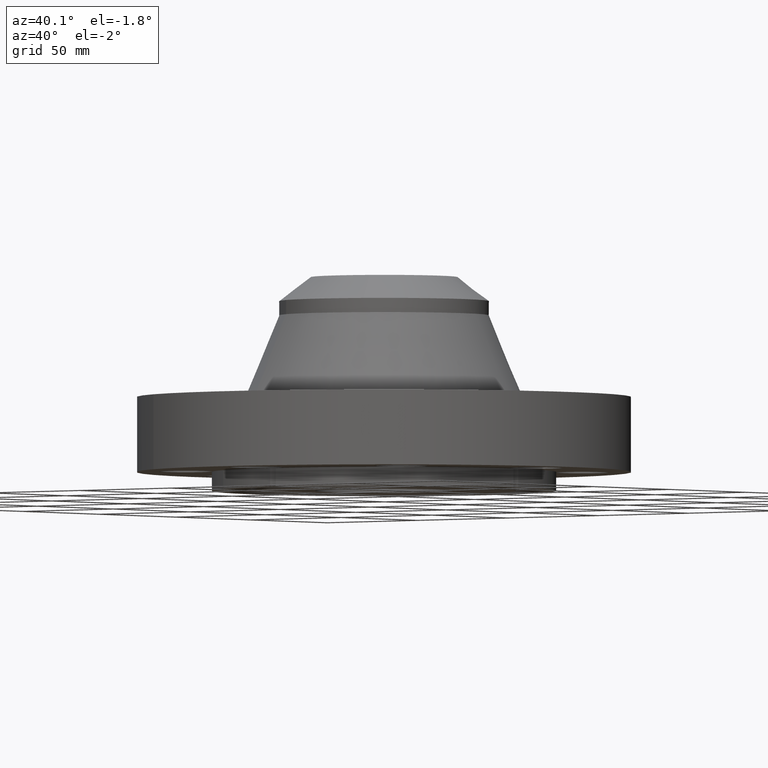
[diagram: clean part render]
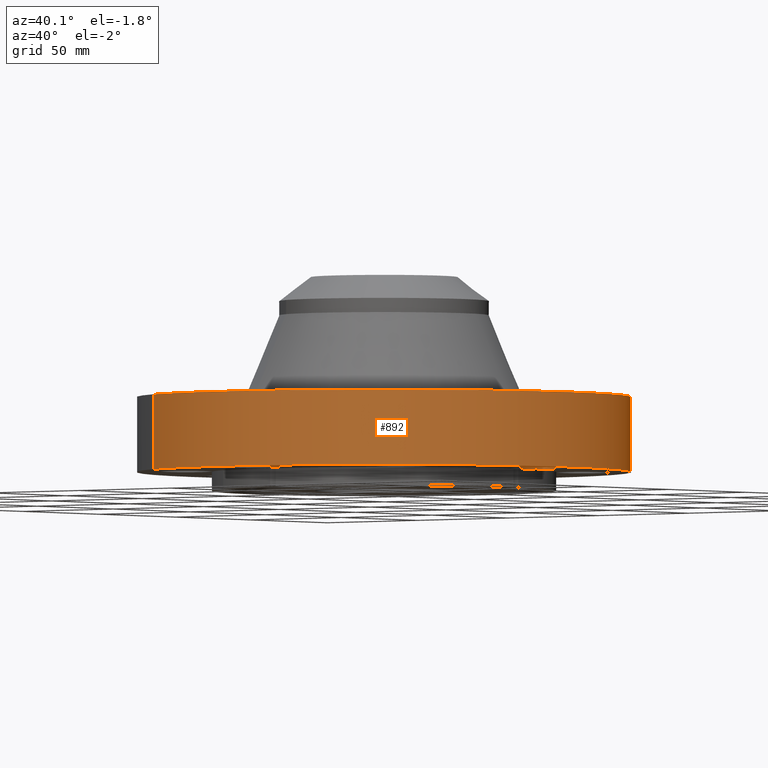
[diagram: same view with one face highlighted and labeled with its STEP entity id]
A machine part, auxiliary view. The second image highlights one B-rep face of the part: STEP entity #892.
In plain terms, the highlighted cylindrical surface (partial cylindrical patch) has radius 104.775 mm, axis along (0, 0, -1).
Its self-contained STEP definition (entity closure, byte-faithful):
#178=AXIS2_PLACEMENT_3D('Circle Axis2P3D',#176,#177,$) ;
#451=AXIS2_PLACEMENT_3D('Circle Axis2P3D',#449,#450,$) ;
#884=AXIS2_PLACEMENT_3D('Cylinder Axis2P3D',#881,#882,#883) ;
#171=CARTESIAN_POINT('Vertex',(-1.97763034678,-3.62002806782,0.)) ;
#173=CARTESIAN_POINT('Vertex',(1.97763034675,3.62002806781,-2.60212498967E-011)) ;
#176=CARTESIAN_POINT('Axis2P3D Location',(-1.1189649382E-015,-4.66664327478E-012,0.)) ;
#449=CARTESIAN_POINT('Axis2P3D Location',(-1.1189649382E-015,5.33354637795E-012,1.25000000001)) ;
#453=CARTESIAN_POINT('Vertex',(1.97763034678,3.62002806783,1.25000000001)) ;
#455=CARTESIAN_POINT('Vertex',(-1.97763034675,-3.62002806781,1.24999999997)) ;
#857=CARTESIAN_POINT('Line Origine',(-1.97763034675,-3.62002806781,0.624999999992)) ;
#862=CARTESIAN_POINT('Line Origine',(1.97763034675,3.62002806781,0.624999999992)) ;
#881=CARTESIAN_POINT('Axis2P3D Location',(0.,0.,1.46850000001)) ;
#177=DIRECTION('Axis2P3D Direction',(0.,0.,-0.0393700787402)) ;
#450=DIRECTION('Axis2P3D Direction',(0.,0.,-0.0393700787402)) ;
#858=DIRECTION('Vector Direction',(0.,0.,-0.0393700787402)) ;
#863=DIRECTION('Vector Direction',(0.,0.,-0.0393700787402)) ;
#882=DIRECTION('Axis2P3D Direction',(0.,0.,-0.0393700787402)) ;
#883=DIRECTION('Axis2P3D XDirection',(0.0188750212049,0.0345504945626,0.)) ;
#859=VECTOR('Line Direction',#858,0.0393700787402) ;
#864=VECTOR('Line Direction',#863,0.0393700787402) ;
#887=ORIENTED_EDGE('',*,*,#180,.F.) ;
#888=ORIENTED_EDGE('',*,*,#866,.T.) ;
#889=ORIENTED_EDGE('',*,*,#457,.T.) ;
#890=ORIENTED_EDGE('',*,*,#861,.F.) ;
#892=ADVANCED_FACE('PartBody',(#891),#885,.T.) ;
#179=CIRCLE('generated circle',#178,4.12500000004) ;
#452=CIRCLE('generated circle',#451,4.12500000004) ;
#885=CYLINDRICAL_SURFACE('generated cylinder',#884,4.12500000002) ;
#180=EDGE_CURVE('',#174,#172,#179,.T.) ;
#457=EDGE_CURVE('',#454,#456,#452,.T.) ;
#861=EDGE_CURVE('',#172,#456,#860,.F.) ;
#866=EDGE_CURVE('',#174,#454,#865,.F.) ;
#886=EDGE_LOOP('',(#887,#888,#889,#890)) ;
#891=FACE_OUTER_BOUND('',#886,.T.) ;
#860=LINE('Line',#857,#859) ;
#865=LINE('Line',#862,#864) ;
#172=VERTEX_POINT('',#171) ;
#174=VERTEX_POINT('',#173) ;
#454=VERTEX_POINT('',#453) ;
#456=VERTEX_POINT('',#455) ;